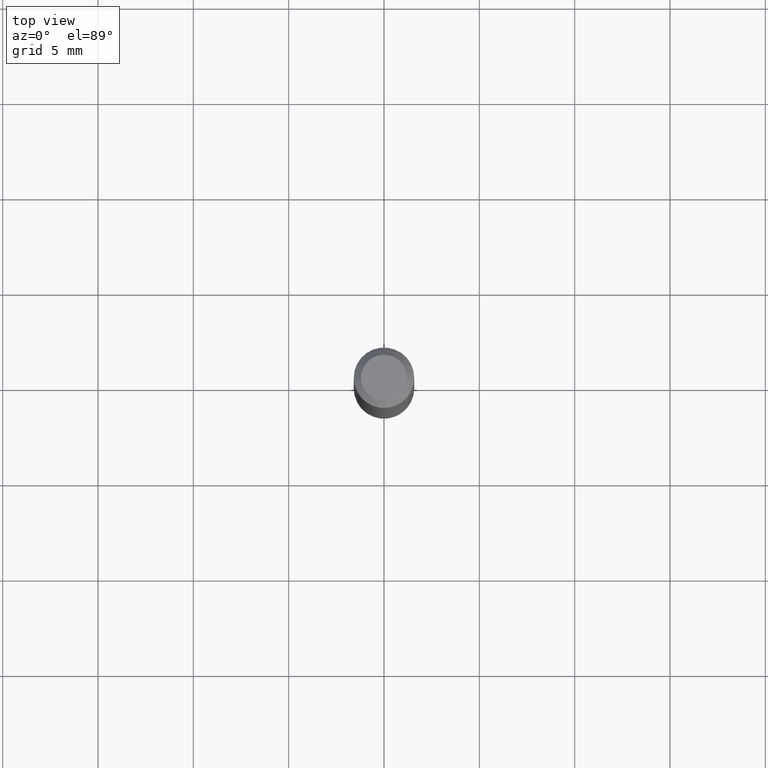
[diagram: clean part render]
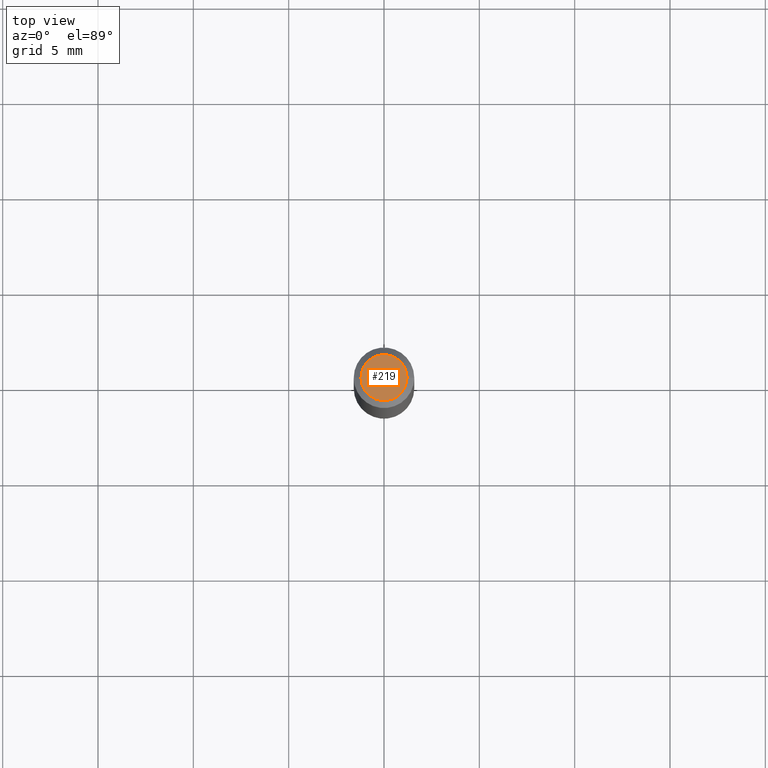
[diagram: same view with one face highlighted and labeled with its STEP entity id]
A machine part, top view. The second image highlights one B-rep face of the part: STEP entity #219.
In plain terms, the highlighted planar face has unit normal (0, -0, -1).
Its self-contained STEP definition (entity closure, byte-faithful):
#1 = FACE_OUTER_BOUND ( 'NONE', #279, .T. ) ;
#6 = EDGE_CURVE ( 'NONE', #87, #203, #281, .T. ) ;
#30 = DIRECTION ( 'NONE',  ( 1.000000000000000000, -6.982962677686267499E-15, 4.852736867747366768E-29 ) ) ;
#36 = PLANE ( 'NONE',  #202 ) ;
#57 = ORIENTED_EDGE ( 'NONE', *, *, #95, .T. ) ;
#87 = VERTEX_POINT ( 'NONE', #208 ) ;
#92 = DIRECTION ( 'NONE',  ( -2.445468806185136597E-29, 3.491481338843145583E-15, 1.000000000000000000 ) ) ;
#95 = EDGE_CURVE ( 'NONE', #203, #87, #109, .T. ) ;
#102 = DIRECTION ( 'NONE',  ( -2.445468806185136597E-29, 3.491481338843145583E-15, 1.000000000000000000 ) ) ;
#109 = CIRCLE ( 'NONE', #195, 0.04749999999999999362 ) ;
#120 = AXIS2_PLACEMENT_3D ( 'NONE', #349, #92, #163 ) ;
#163 = DIRECTION ( 'NONE',  ( 1.000000000000000000, -6.982962677686267499E-15, 4.852736867747366768E-29 ) ) ;
#195 = AXIS2_PLACEMENT_3D ( 'NONE', #435, #102, #30 ) ;
#202 = AXIS2_PLACEMENT_3D ( 'NONE', #409, #261, #257 ) ;
#203 = VERTEX_POINT ( 'NONE', #292 ) ;
#208 = CARTESIAN_POINT ( 'NONE',  ( 0.04749999999999999362, -4.035134999187587991E-16, -5.475136966724933130E-16 ) ) ;
#219 = ADVANCED_FACE ( 'NONE', ( #1 ), #36, .F. ) ;
#242 = ORIENTED_EDGE ( 'NONE', *, *, #6, .T. ) ;
#257 = DIRECTION ( 'NONE',  ( -1.000000000000000000, 6.982962677686265922E-15, -4.876176775795935793E-29 ) ) ;
#261 = DIRECTION ( 'NONE',  ( 2.438088387897960049E-29, -3.491481338843145188E-15, -1.000000000000000000 ) ) ;
#279 = EDGE_LOOP ( 'NONE', ( #57, #242 ) ) ;
#281 = CIRCLE ( 'NONE', #120, 0.04749999999999999362 ) ;
#292 = CARTESIAN_POINT ( 'NONE',  ( -0.04749999999999999362, 3.578768372314200645E-16, -5.475136966724983420E-16 ) ) ;
#349 = CARTESIAN_POINT ( 'NONE',  ( 1.338927666171699620E-44, -1.911633854693045944E-30, -5.475136966724958768E-16 ) ) ;
#409 = CARTESIAN_POINT ( 'NONE',  ( 3.316907271900976096E-16, 0.04749999999999999362, -4.396022119312973841E-16 ) ) ;
#435 = CARTESIAN_POINT ( 'NONE',  ( 1.338927666171699620E-44, -1.911633854693045944E-30, -5.475136966724958768E-16 ) ) ;